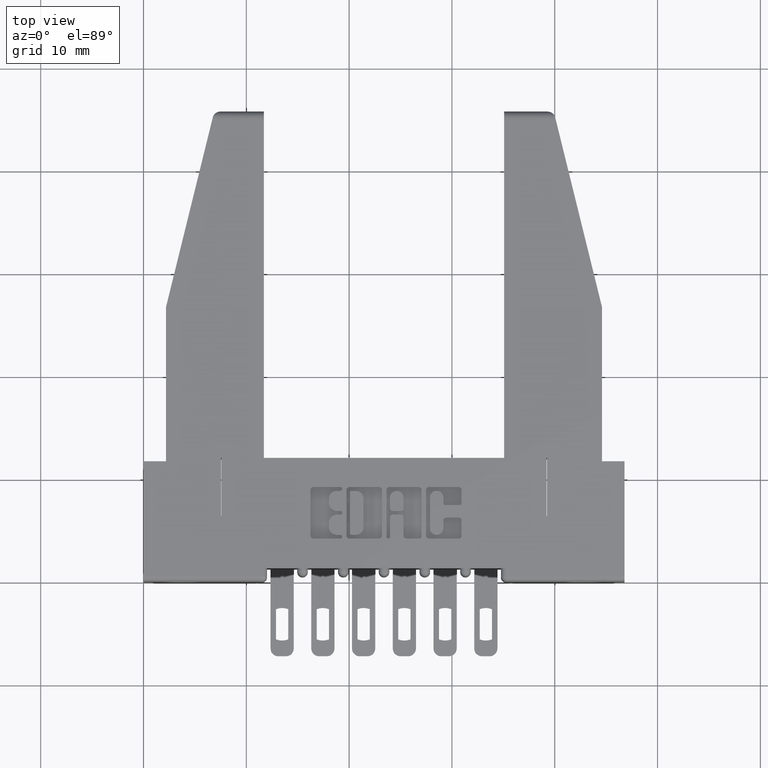
[diagram: clean part render]
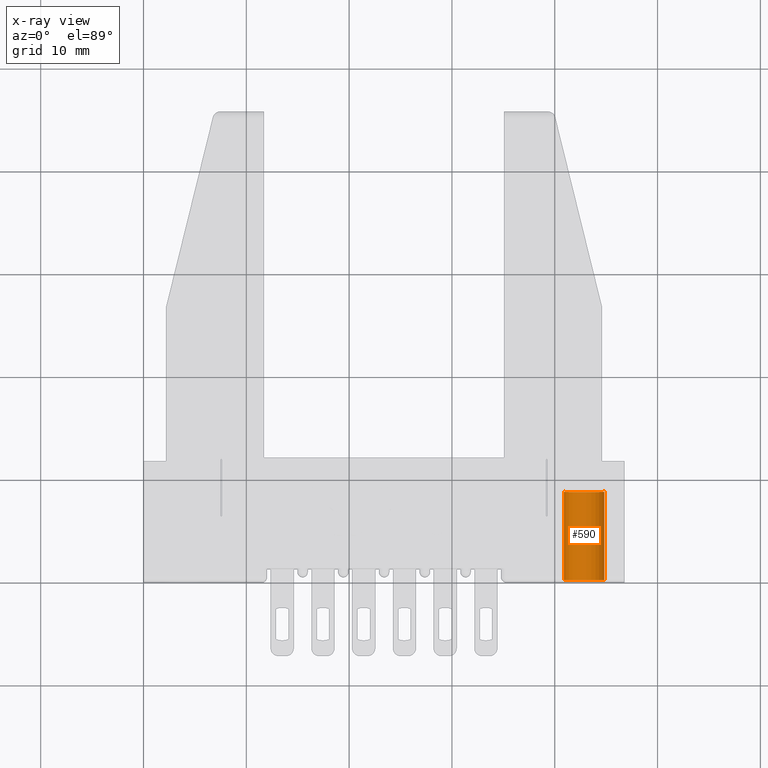
[diagram: x-ray — body ghosted, one internal face saturated and labeled with its STEP entity id]
A machine part, top view, then the same camera in x-ray: the body is ghosted and one INTERNAL B-rep face — a face not visible from any outside direction — is saturated and labeled: STEP entity #590.
In plain terms, the highlighted cylindrical surface (edge-blend (fillet) strip) has radius 1.9685 mm, axis along (-0, 1, 0).
Its self-contained STEP definition (entity closure, byte-faithful):
#103 = CARTESIAN_POINT ( 'NONE',  ( 3.706503900334894200E-034, 0.3780000000000000600, -0.07749999999999999900 ) ) ;
#183 = DIRECTION ( 'NONE',  ( 2.465190328815661900E-032, 1.000000000000000000, -4.930380657631323800E-032 ) ) ;
#590 = ADVANCED_FACE ( 'NONE', ( #3814 ), #5394, .T. ) ;
#645 = CARTESIAN_POINT ( 'NONE',  ( -3.795521265664980500E-033, 0.3780000000000000600, -0.07749999999999999900 ) ) ;
#810 = ORIENTED_EDGE ( 'NONE', *, *, #10914, .F. ) ;
#1026 = DIRECTION ( 'NONE',  ( -2.465190328815661900E-032, -1.000000000000000000, 4.930380657631323800E-032 ) ) ;
#1511 = LINE ( 'NONE', #103, #11064 ) ;
#1555 = CARTESIAN_POINT ( 'NONE',  ( -3.795521265664980500E-033, 0.03999999999999998000, -0.07749999999999999900 ) ) ;
#2253 = AXIS2_PLACEMENT_3D ( 'NONE', #11597, #3093, #4041 ) ;
#2717 = VERTEX_POINT ( 'NONE', #1555 ) ;
#3036 = DIRECTION ( 'NONE',  ( 2.465190328815661900E-032, 1.000000000000000000, -4.930380657631323800E-032 ) ) ;
#3093 = DIRECTION ( 'NONE',  ( -2.465190328815661900E-032, -1.000000000000000000, 4.930380657631323800E-032 ) ) ;
#3448 = EDGE_CURVE ( 'NONE', #3661, #5320, #8656, .T. ) ;
#3632 = CARTESIAN_POINT ( 'NONE',  ( 9.491012693391986400E-018, 0.3780000000000000600, 0.07749999999999999900 ) ) ;
#3661 = VERTEX_POINT ( 'NONE', #7622 ) ;
#3814 = FACE_OUTER_BOUND ( 'NONE', #7321, .T. ) ;
#4041 = DIRECTION ( 'NONE',  ( 4.782585677851476400E-033, 0.0000000000000000000, -1.000000000000000000 ) ) ;
#4394 = VERTEX_POINT ( 'NONE', #645 ) ;
#4651 = CARTESIAN_POINT ( 'NONE',  ( 9.491012693391983300E-018, 0.03999999999999998000, 0.07749999999999999900 ) ) ;
#4688 = CIRCLE ( 'NONE', #9647, 0.07749999999999999900 ) ;
#5320 = VERTEX_POINT ( 'NONE', #4651 ) ;
#5394 = CYLINDRICAL_SURFACE ( 'NONE', #2253, 0.07749999999999999900 ) ;
#5477 = VECTOR ( 'NONE', #1026, 39.37007874015748100 ) ;
#5782 = CARTESIAN_POINT ( 'NONE',  ( 0.0000000000000000000, 0.3780000000000000600, 0.0000000000000000000 ) ) ;
#6538 = DIRECTION ( 'NONE',  ( -2.465190328815661900E-032, -1.000000000000000000, 4.930380657631323800E-032 ) ) ;
#7321 = EDGE_LOOP ( 'NONE', ( #810, #11235, #11725, #11051 ) ) ;
#7588 = DIRECTION ( 'NONE',  ( -4.782585677851476400E-033, 0.0000000000000000000, 1.000000000000000000 ) ) ;
#7622 = CARTESIAN_POINT ( 'NONE',  ( 9.491012693391983300E-018, 0.3780000000000000600, 0.07749999999999999900 ) ) ;
#7742 = CIRCLE ( 'NONE', #11749, 0.07749999999999999900 ) ;
#8656 = LINE ( 'NONE', #3632, #5477 ) ;
#9322 = CARTESIAN_POINT ( 'NONE',  ( 0.0000000000000000000, 0.03999999999999998000, 0.0000000000000000000 ) ) ;
#9647 = AXIS2_PLACEMENT_3D ( 'NONE', #5782, #3036, #11371 ) ;
#10914 = EDGE_CURVE ( 'NONE', #3661, #4394, #4688, .T. ) ;
#11051 = ORIENTED_EDGE ( 'NONE', *, *, #11505, .F. ) ;
#11064 = VECTOR ( 'NONE', #6538, 39.37007874015748100 ) ;
#11235 = ORIENTED_EDGE ( 'NONE', *, *, #3448, .T. ) ;
#11371 = DIRECTION ( 'NONE',  ( -4.782585677851476400E-033, 0.0000000000000000000, 1.000000000000000000 ) ) ;
#11478 = EDGE_CURVE ( 'NONE', #5320, #2717, #7742, .T. ) ;
#11505 = EDGE_CURVE ( 'NONE', #4394, #2717, #1511, .T. ) ;
#11597 = CARTESIAN_POINT ( 'NONE',  ( 0.0000000000000000000, 0.3780000000000000600, 0.0000000000000000000 ) ) ;
#11725 = ORIENTED_EDGE ( 'NONE', *, *, #11478, .T. ) ;
#11749 = AXIS2_PLACEMENT_3D ( 'NONE', #9322, #183, #7588 ) ;